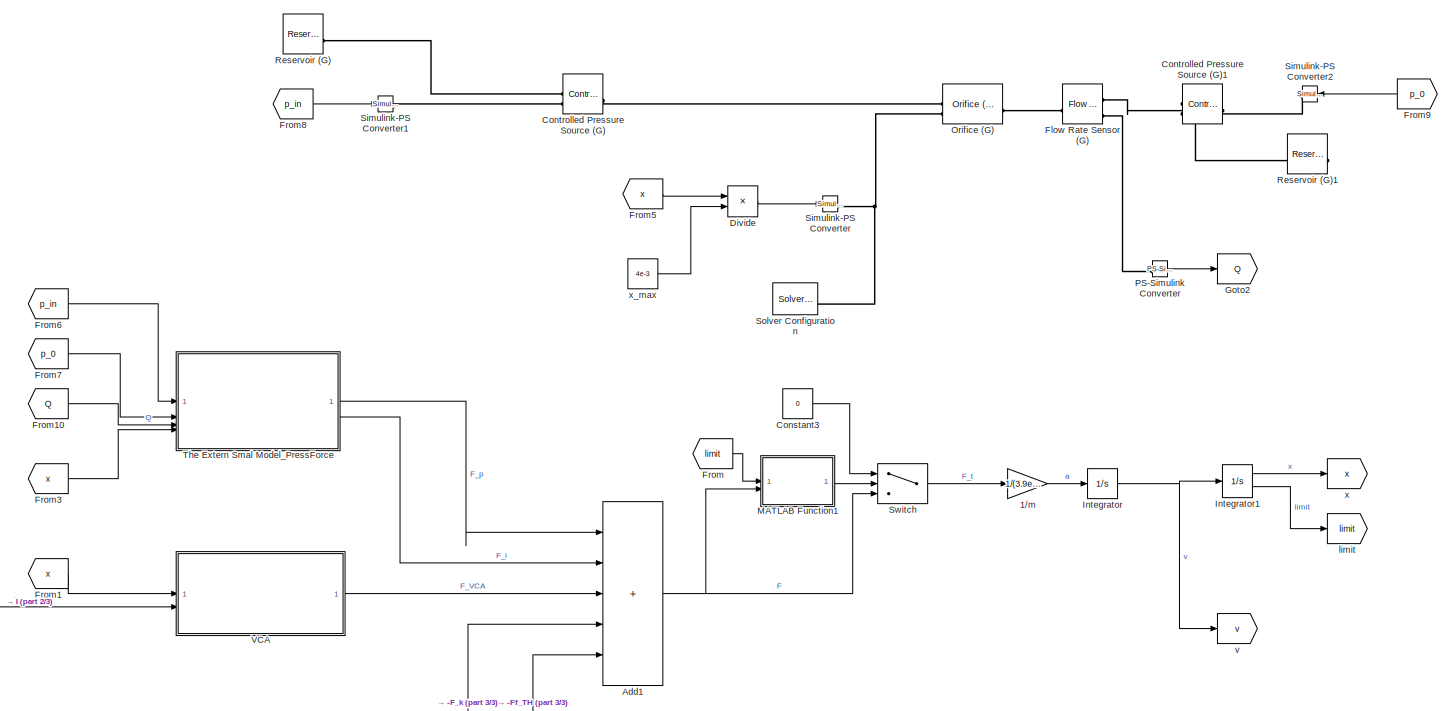
[diagram: root canvas - part 1/3, full width, middle band]
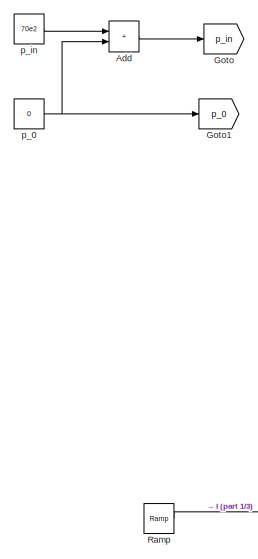
[diagram: root canvas - part 2/3, middle left region]
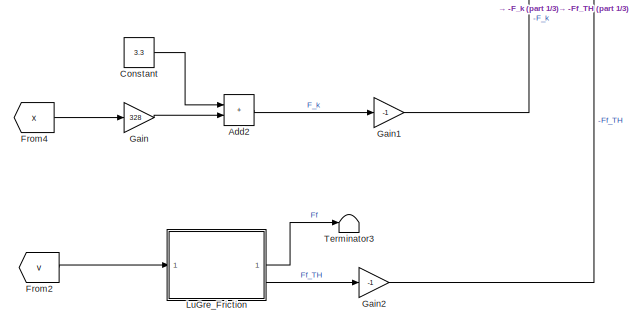
[diagram: root canvas - part 3/3, bottom left region]
MODEL slx_1b4b0ca0abe9
KIND model
CONFIG AbsTol = 1e-3
CONFIG EnableMultiTasking = off
CONFIG FixedStep = auto
CONFIG MaxStep = auto
CONFIG MinStep = auto
CONFIG RelTol = 1e-3
CONFIG SampleTimeConstraint = Unconstrained
CONFIG SolverName = VariableStepAuto
CONFIG StartTime = 0.0
CONFIG StopTime = 8
BLOCK [Gain] 1//m
  Gain = 1/(3.9e-3+6e-3)
BLOCK [Sum] Add
  IconShape = rectangular
BLOCK [Sum] Add1
  IconShape = rectangular
  Inputs = +++++
BLOCK [Sum] Add2
  IconShape = rectangular
BLOCK [Constant] Constant
  Value = 3.3
BLOCK [Constant] Constant3
  Value = 0
BLOCK [Reference] Controlled Pressure Source (G)  REF=fl_lib/Gas/Sources/Controlled Pressure
Source (G)
  SourceBlock = fl_lib/Gas/Sources/Controlled Pressure\nSource (G)
  SourceType = Controlled Pressure\nSource (G)
BLOCK [Reference] Controlled Pressure Source (G)1  REF=fl_lib/Gas/Sources/Controlled Pressure
Source (G)
  NameLocation = top
  SourceBlock = fl_lib/Gas/Sources/Controlled Pressure\nSource (G)
  SourceType = Controlled Pressure\nSource (G)
BLOCK [Product] Divide
  Inputs = */
BLOCK [Reference] Flow Rate Sensor (G)  REF=fl_lib/Gas/Sensors/Flow Rate Sensor (G)
  SourceBlock = fl_lib/Gas/Sensors/Flow Rate Sensor (G)
  SourceType = Flow Rate Sensor (G)
BLOCK [From] From
  GotoTag = limit
BLOCK [From] From1
  GotoTag = x
BLOCK [From] From10
  GotoTag = Q
BLOCK [From] From2
  GotoTag = v
BLOCK [From] From3
  GotoTag = x
BLOCK [From] From4
  GotoTag = x
BLOCK [From] From5
  GotoTag = x
BLOCK [From] From6
  GotoTag = p_in
BLOCK [From] From7
  GotoTag = p_0
BLOCK [From] From8
  GotoTag = p_in
BLOCK [From] From9
  GotoTag = p_0
  NameLocation = top
BLOCK [Gain] Gain
  Gain = 328
BLOCK [Gain] Gain1
  Gain = -1
BLOCK [Gain] Gain2
  Gain = -1
BLOCK [Goto] Goto
  GotoTag = p_in
BLOCK [Goto] Goto1
  GotoTag = p_0
BLOCK [Goto] Goto2
  GotoTag = Q
BLOCK [Integrator] Integrator
BLOCK [Integrator] Integrator1
  ContinuousStateAttributes = 'x'
  InitialCondition = 1e-8
  LimitOutput = on
  LowerSaturationLimit = 1e-8
  ShowSaturationPort = on
  UpperSaturationLimit = 4e-3
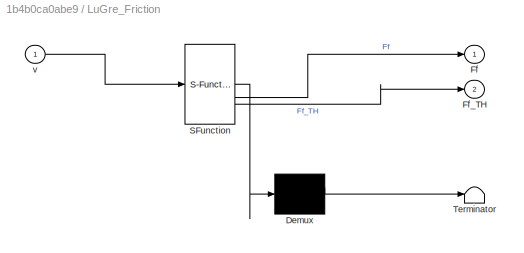
BLOCK [SubSystem] LuGre_Friction
  ErrorFcn = Stateflow.Translate.translate
  LibrarySourceBlock = simulink/User-Defined\nFunctions/MATLAB Function
  PermitHierarchicalResolution = ExplicitOnly
  SFBlockType = MATLAB Function
  TreatAsAtomicUnit = on
BLOCK [Demux] LuGre_Friction/ Demux 
  Outputs = 1
BLOCK [S-Function] LuGre_Friction/ SFunction 
  EnableBusSupport = on
  FunctionName = sf_sfun
  PortCounts = [1 3]
  SFcnIsStateOwnerBlock = off
  SFunctionDeploymentMode = off
  Tag = Stateflow S-Function 4
BLOCK [Terminator] LuGre_Friction/ Terminator 
BLOCK [Outport] LuGre_Friction/Ff
BLOCK [Outport] LuGre_Friction/Ff_TH
  Port = 2
BLOCK [Inport] LuGre_Friction/v
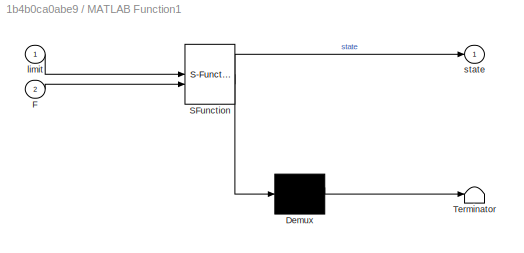
BLOCK [SubSystem] MATLAB Function1
  ErrorFcn = Stateflow.Translate.translate
  LibrarySourceBlock = simulink/User-Defined\nFunctions/MATLAB Function
  PermitHierarchicalResolution = ExplicitOnly
  SFBlockType = MATLAB Function
  TreatAsAtomicUnit = on
BLOCK [Demux] MATLAB Function1/ Demux 
  Outputs = 1
BLOCK [S-Function] MATLAB Function1/ SFunction 
  EnableBusSupport = on
  FunctionName = sf_sfun
  PortCounts = [2 2]
  SFcnIsStateOwnerBlock = off
  SFunctionDeploymentMode = off
  Tag = Stateflow S-Function 5
BLOCK [Terminator] MATLAB Function1/ Terminator 
BLOCK [Inport] MATLAB Function1/F
  Port = 2
BLOCK [Inport] MATLAB Function1/limit
BLOCK [Outport] MATLAB Function1/state
BLOCK [Reference] Orifice (G)  REF=SimscapeFluids_lib/Gas/Valves & Orifices/Orifice (G)
  SourceBlock = SimscapeFluids_lib/Gas/Valves & Orifices/Orifice (G)
  SourceType = Orifice (G)
BLOCK [Reference] PS-Simulink Converter  REF=nesl_utility/PS-Simulink
Converter
  SourceBlock = nesl_utility/PS-Simulink\nConverter
  SourceType = PS-Simulink\nConverter
BLOCK [Reference] Ramp  REF=simulink/Sources/Ramp
  SourceBlock = simulink/Sources/Ramp
  SourceType = Ramp
BLOCK [Reference] Reservoir (G)  REF=fl_lib/Gas/Elements/Reservoir (G)
  SourceBlock = fl_lib/Gas/Elements/Reservoir (G)
  SourceType = Reservoir (G)
BLOCK [Reference] Reservoir (G)1  REF=fl_lib/Gas/Elements/Reservoir (G)
  NameLocation = top
  SourceBlock = fl_lib/Gas/Elements/Reservoir (G)
  SourceType = Reservoir (G)
BLOCK [Reference] Simulink-PS Converter  REF=nesl_utility/Simulink-PS
Converter
  SourceBlock = nesl_utility/Simulink-PS\nConverter
  SourceType = Simulink-PS\nConverter
BLOCK [Reference] Simulink-PS Converter1  REF=nesl_utility/Simulink-PS
Converter
  SourceBlock = nesl_utility/Simulink-PS\nConverter
  SourceType = Simulink-PS\nConverter
BLOCK [Reference] Simulink-PS Converter2  REF=nesl_utility/Simulink-PS
Converter
  NameLocation = top
  SourceBlock = nesl_utility/Simulink-PS\nConverter
  SourceType = Simulink-PS\nConverter
BLOCK [Reference] Solver Configuration  REF=nesl_utility/Solver
Configuration
  SourceBlock = nesl_utility/Solver\nConfiguration
  SourceType = Solver\nConfiguration
BLOCK [Switch] Switch
  Criteria = u2 ~= 0
  InputSameDT = off
  SaturateOnIntegerOverflow = off
BLOCK [Terminator] Terminator3
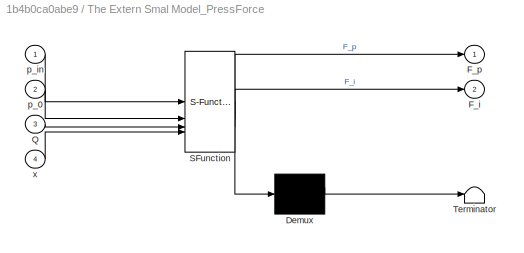
BLOCK [SubSystem] The Extern Smal Model_PressForce
  ErrorFcn = Stateflow.Translate.translate
  LibrarySourceBlock = simulink/User-Defined\nFunctions/MATLAB Function
  PermitHierarchicalResolution = ExplicitOnly
  SFBlockType = MATLAB Function
  TreatAsAtomicUnit = on
BLOCK [Demux] The Extern Smal Model_PressForce/ Demux 
  Outputs = 1
BLOCK [S-Function] The Extern Smal Model_PressForce/ SFunction 
  EnableBusSupport = on
  FunctionName = sf_sfun
  PortCounts = [4 3]
  SFcnIsStateOwnerBlock = off
  SFunctionDeploymentMode = off
  Tag = Stateflow S-Function 3
BLOCK [Terminator] The Extern Smal Model_PressForce/ Terminator 
BLOCK [Outport] The Extern Smal Model_PressForce/F_i
  Port = 2
BLOCK [Outport] The Extern Smal Model_PressForce/F_p
BLOCK [Inport] The Extern Smal Model_PressForce/Q
  Port = 3
BLOCK [Inport] The Extern Smal Model_PressForce/p_0
  Port = 2
BLOCK [Inport] The Extern Smal Model_PressForce/p_in
BLOCK [Inport] The Extern Smal Model_PressForce/x
  Port = 4
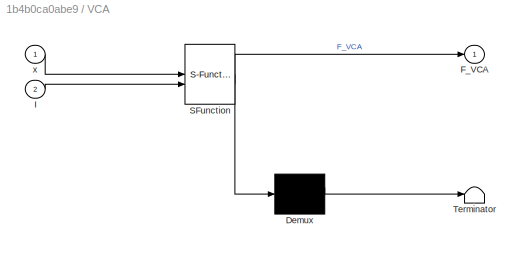
BLOCK [SubSystem] VCA
  ErrorFcn = Stateflow.Translate.translate
  LibrarySourceBlock = simulink/User-Defined\nFunctions/MATLAB Function
  PermitHierarchicalResolution = ExplicitOnly
  SFBlockType = MATLAB Function
  TreatAsAtomicUnit = on
BLOCK [Demux] VCA/ Demux 
  Outputs = 1
BLOCK [S-Function] VCA/ SFunction 
  EnableBusSupport = on
  FunctionName = sf_sfun
  PortCounts = [2 2]
  SFcnIsStateOwnerBlock = off
  SFunctionDeploymentMode = off
  Tag = Stateflow S-Function 2
BLOCK [Terminator] VCA/ Terminator 
BLOCK [Outport] VCA/F_VCA
BLOCK [Inport] VCA/I
  Port = 2
BLOCK [Inport] VCA/x
BLOCK [Goto] limit
  GotoTag = limit
BLOCK [Constant] p_0
  Value = 0
BLOCK [Constant] p_in
  Value = 70e2
BLOCK [Goto] v
  GotoTag = v
BLOCK [Goto] x
  GotoTag = x
BLOCK [Constant] x_max
  Value = 4e-3
LINE 1//m:1 -> Integrator:1
NET Add1:1 -> MATLAB Function1:2, Switch:3
LINE Add2:1 -> Gain1:1
LINE Add:1 -> Goto:1
LINE Constant3:1 -> Switch:1
LINE Constant:1 -> Add2:1
LINE Divide:1 -> Simulink-PS Converter:1
LINE From10:1 -> The Extern Smal Model_PressForce:3
LINE From1:1 -> VCA:1
LINE From2:1 -> LuGre_Friction:1
LINE From3:1 -> The Extern Smal Model_PressForce:4
LINE From4:1 -> Gain:1
LINE From5:1 -> Divide:1
LINE From6:1 -> The Extern Smal Model_PressForce:1
LINE From7:1 -> The Extern Smal Model_PressForce:2
LINE From8:1 -> Simulink-PS Converter1:1
LINE From9:1 -> Simulink-PS Converter2:1
LINE From:1 -> MATLAB Function1:1
LINE Gain1:1 -> Add1:4
LINE Gain2:1 -> Add1:5
LINE Gain:1 -> Add2:2
LINE Integrator1:1 -> x:1
LINE Integrator1:2 -> limit:1
NET Integrator:1 -> Integrator1:1, v:1
LINE LuGre_Friction:1 -> Terminator3:1
LINE LuGre_Friction:2 -> Gain2:1
LINE MATLAB Function1:1 -> Switch:2
LINE PS-Simulink Converter:1 -> Goto2:1
LINE Ramp:1 -> VCA:2
LINE Switch:1 -> 1//m:1
LINE The Extern Smal Model_PressForce:1 -> Add1:1
LINE The Extern Smal Model_PressForce:2 -> Add1:2
LINE VCA:1 -> Add1:3
NET p_0:1 -> Add:2, Goto1:1
LINE p_in:1 -> Add:1
LINE x_max:1 -> Divide:2
PLINE Controlled Pressure Source (G)1:LConn1 -- Reservoir (G)1:LConn1
PLINE Controlled Pressure Source (G)1:LConn2 -- Simulink-PS Converter2:RConn1
PLINE Controlled Pressure Source (G)1:RConn1 -- Flow Rate Sensor (G):RConn1
PLINE Controlled Pressure Source (G):LConn1 -- Reservoir (G):LConn1
PLINE Controlled Pressure Source (G):LConn2 -- Simulink-PS Converter1:RConn1
PLINE Controlled Pressure Source (G):RConn1 -- Orifice (G):LConn1
PLINE Flow Rate Sensor (G):LConn1 -- Orifice (G):RConn1
PLINE Flow Rate Sensor (G):RConn3 -- PS-Simulink Converter:LConn1
PNET net1: Orifice (G):LConn2 -- Simulink-PS Converter:RConn1 -- Solver Configuration:RConn1
note: NET lines group one-source signal fan-out (src -> all destinations, sorted); 1:1 wires keep LINE; PNET lines group multi-terminal physical nets as a canonical sorted terminal list (undirected conserving connections); 2-terminal nets keep the pairwise PLINE form
CHART VCA states=1 transitions=1
  STATE_LABEL 'eML_blk_kernel()'
  STATE_LABEL 'SCRIPT:\nfunction F_VCA  = fcn(x, I)\n% VCA\n% 音圈电磁力模型\n% Pg-气隙磁导\n% 默认音圈的永磁铁为圆柱形式\nmu_0 = pi*4e-7;%磁导率，N*A^-2\nr1 = 12e-3;%极片半径，m\nr2 = 20e-3;%外壳半径，m\nh = 10e-3;%极片高度，m\n%Ag = (r2-r1)*h;%气隙磁路横截面，m^2\nAg = 2*pi*(r2+r1)*h;%气隙面积，m^2\nLg = 2*pi*(r1+r2)/2;%气隙长度，m\nPg = mu_0*Ag/Lg;%气隙磁导,H/m\n%  气隙外总泄露磁导-Ptl\nDp = r1*2;%极片直径，m\nDy = r2*2;%扼片直径，m\nDm = 10e-3*2;%磁铁直径，m\nLm = 10e-3;%磁铁长度，m\nPf1 = 0.264*pi*mu_0*(Dp+Lg);\nPf2 =...<+1080ch>'
CHART The Extern Smal Model_PressForce states=1 transitions=1
  STATE_LABEL 'eML_blk_kernel()'
  STATE_LABEL 'SCRIPT:\nfunction [F_p,F_i] = fcn(p_in,p_0,Q,x)\n% The Extended Smal Model\n% 拓展的smal模型，包括流量模型、压力模型\n% 阀座和膜片的几何参数\nr_vi= 5e-3;%阀内进气腔半径，m\nr_in = 5e-3;%阀外进气口半径，m\nr_c = 6e-3;%阀内进气腔末端半径，m\nr_m = 2e-3;%膜片半径，m\nr_ex = 5e-3;%阀外出气口半径，m\n% 流量模型-Flow Medel\nzeta_in = 1-(r_vi/r_in)^4;%阀进气口的压力损失因子，1\nzeta_ex = 1-(r_ex/r_c)^4;%阀出气口的压力损失因子，1\n% x_det_max = 5e-3;%线圈最大位移，m\nyr = x/(2*r_vi);%\nzeta_yr = -6.1*exp(-4.13*yr)+0.49...<+811ch>'
CHART LuGre_Friction states=1 transitions=1
  STATE_LABEL 'eML_blk_kernel()'
  STATE_LABEL 'SCRIPT:\nfunction [Ff,Ff_TH] = fcn(v)\n% LuGre_Friction\n% LuGre摩擦力模型\n% Columb-库伦摩擦-Fc\nmu_c = 0.10;%动摩擦系数\nFn = 1;%法向力,N\nFc = mu_c*Fn;%库伦摩擦,N\n% Viscous-粘性摩擦-Fv\n% deta_v = 17.9e-6;%粘性系数，N*m^2/s\ndeta_v = 8e-1;%粘性系数，N*m^2/s 8e-1\nFv = deta_v*v;\n% brk-临界摩擦-Fbrk\nmu_b = 0.15;%临界(静)摩擦系数\nFbrk = mu_b*Fn;%临界摩擦,N\n% Stribeck-斯特里贝克摩擦-Fs\ncv = 100;\nFs = (Fbrk-Fc)*exp(-1*cv*abs(v))*sign(v);\n% 总摩擦力-Ff\nFf = Fc+Fv+Fs;\n% ...<+181ch>'
CHART MATLAB Function1 states=1 transitions=1
  STATE_LABEL 'eML_blk_kernel()'
  STATE_LABEL 'SCRIPT:\nfunction state = fcn(limit,F)\nif(limit==1 && F>0)\n    state = 1;\nelseif(limit==-1 && F<0)\n    state = -1;\nelse\n    state = 0;\nend\n\n'
CHART  states=0 transitions=0
CHART  states=0 transitions=0
CHART  states=0 transitions=0
CHART  states=0 transitions=0
